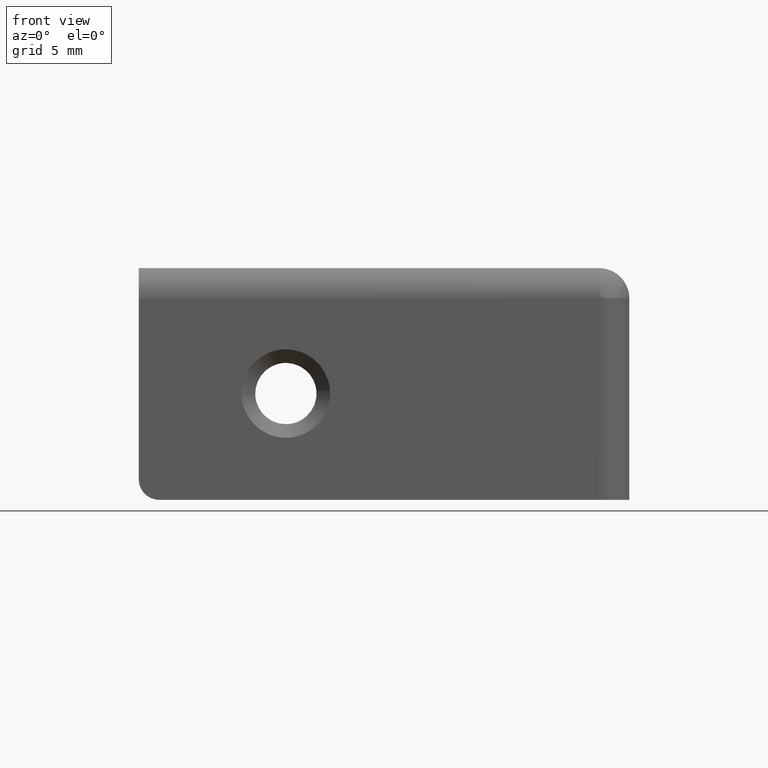
[diagram: clean part render]
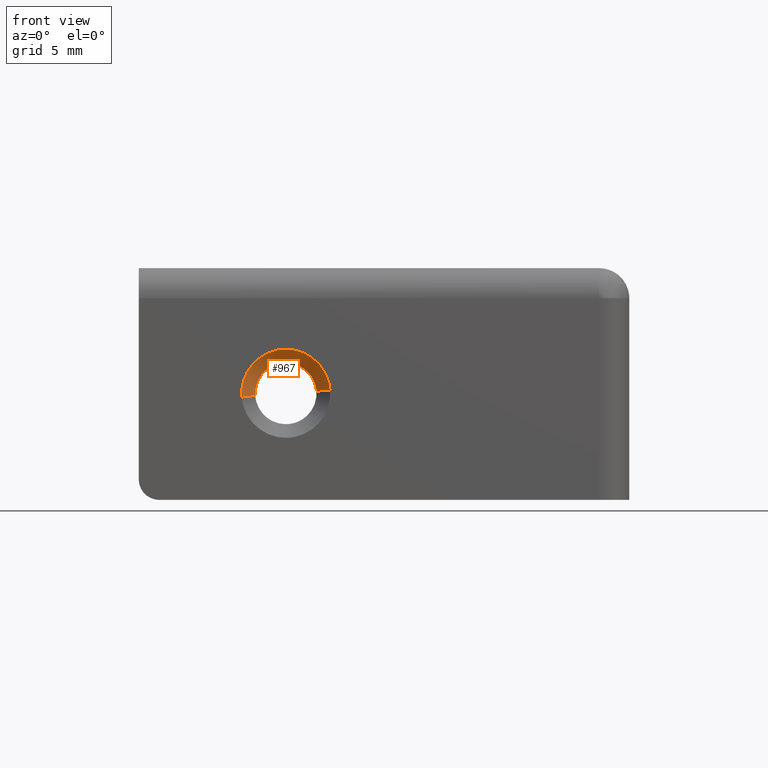
[diagram: same view with one face highlighted and labeled with its STEP entity id]
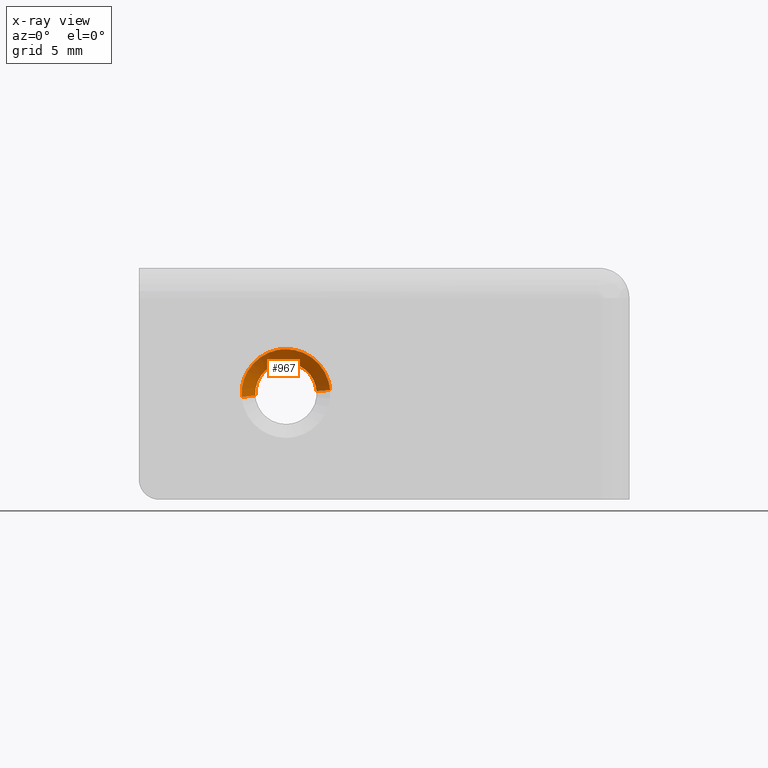
[diagram: x-ray of the same camera — body ghosted, the highlighted face saturated]
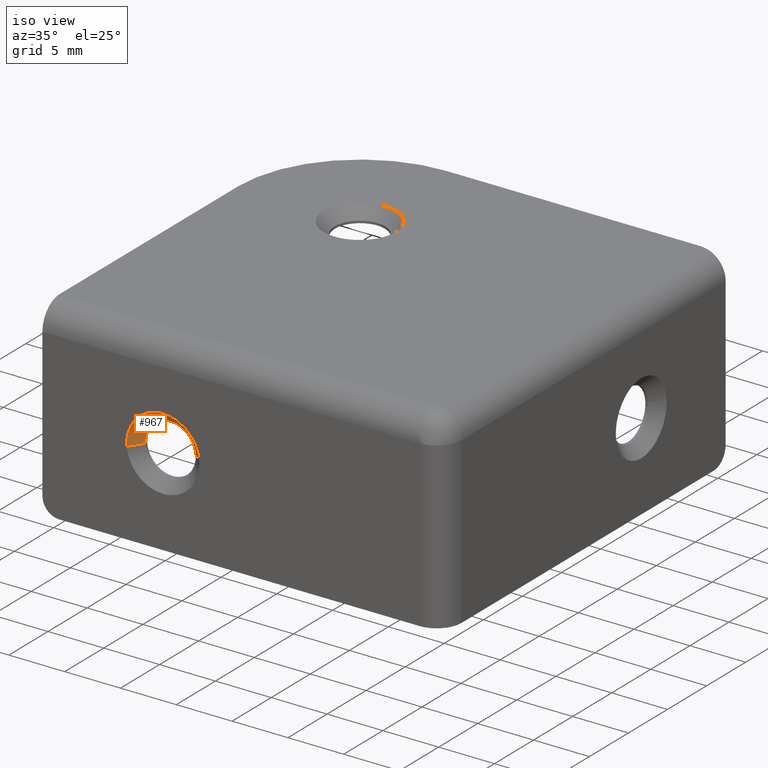
[diagram: same view with one face highlighted and labeled with its STEP entity id]
A machine part, front view. The second image highlights one B-rep face of the part: STEP entity #967.
The next image is the same camera in x-ray: the body ghosted, the highlighted face saturated — about 0% of this face is hidden behind the body in this view.
A second angle (iso view) of the same face is appended — the face is thin or edge-on in the first view.
In plain terms, the highlighted face is a freeform B-spline surface patch.
Its self-contained STEP definition (entity closure, byte-faithful):
#772=CARTESIAN_POINT('',(-27.445803308114620,0.999999999999988,7.662640976774620));
#773=VERTEX_POINT('',#772);
#817=CARTESIAN_POINT('',(-22.956935999099692,0.999999999998029,7.976532965402836));
#818=VERTEX_POINT('',#817);
#834=CARTESIAN_POINT('',(-25.199999999999999,1.0,10.049999999999899));
#835=VERTEX_POINT('',#834);
#836=CARTESIAN_POINT('',(-25.199999999999999,1.0,10.049999999999899));
#837=CARTESIAN_POINT('',(-23.120121393797195,1.0,10.049999999999901));
#838=CARTESIAN_POINT('',(-22.956935999099692,0.999999999998029,7.976532965402837));
#846=(BOUNDED_CURVE()B_SPLINE_CURVE(2,(#836,#837,#838),.UNSPECIFIED.,.F.,.U.)B_SPLINE_CURVE_WITH_KNOTS((3,3),(0.0,0.236331300630454),.UNSPECIFIED.)CURVE()GEOMETRIC_REPRESENTATION_ITEM()RATIONAL_B_SPLINE_CURVE((1.0,0.723120658607906,0.969723356166989))REPRESENTATION_ITEM(''));
#847=EDGE_CURVE('',#835,#818,#846,.T.);
#849=CARTESIAN_POINT('',(-27.445803308114634,1.0,7.662640976774619));
#850=CARTESIAN_POINT('',(-27.450000000000006,1.0,7.731256378209540));
#851=CARTESIAN_POINT('',(-27.449999999999999,1.0,7.799999999999900));
#852=CARTESIAN_POINT('',(-27.449999999999999,1.0,10.049999999999899));
#853=CARTESIAN_POINT('',(-25.199999999999999,1.0,10.049999999999899));
#861=(BOUNDED_CURVE()B_SPLINE_CURVE(2,(#849,#850,#851,#852,#853),.UNSPECIFIED.,.F.,.U.)B_SPLINE_CURVE_WITH_KNOTS((3,2,3),(0.739332976895758,0.750000000000000,1.0),.UNSPECIFIED.)CURVE()GEOMETRIC_REPRESENTATION_ITEM()RATIONAL_B_SPLINE_CURVE((0.976072073079065,0.987502805071365,1.0,0.707106781186547,1.0))REPRESENTATION_ITEM(''));
#862=EDGE_CURVE('',#773,#835,#861,.T.);
#901=CARTESIAN_POINT('',(-22.981858932443789,1.025000000000000,7.974571487994355));
#902=CARTESIAN_POINT('',(-23.156430420438245,1.025000000000000,10.192712555550562));
#903=CARTESIAN_POINT('',(-25.374571487994459,1.025000000000000,10.018141067556110));
#904=CARTESIAN_POINT('',(-27.592712555550666,1.025000000000000,9.843569579561651));
#905=CARTESIAN_POINT('',(-27.418141067556210,1.025000000000000,7.625428512005444));
#906=CARTESIAN_POINT('',(-21.934472658690421,-0.025625000000000,8.057002575443423));
#907=CARTESIAN_POINT('',(-22.191475234133957,-0.025625000000000,11.322529916753000));
#908=CARTESIAN_POINT('',(-25.457002575443529,-0.025625000000000,11.065527341309480));
#909=CARTESIAN_POINT('',(-28.722529916753100,-0.025625000000000,10.808524765865952));
#910=CARTESIAN_POINT('',(-28.465527341309571,-0.025625000000000,7.542997424556376));
#918=(BOUNDED_SURFACE()B_SPLINE_SURFACE(2,1,((#901,#906),(#902,#907),(#903,#908),(#904,#909),(#905,#910)),.UNSPECIFIED.,.F.,.F.,.U.)B_SPLINE_SURFACE_WITH_KNOTS((3,2,3),(2,2),(0.0,5.427233200993475,10.854466401986951),(0.0,1.0),.UNSPECIFIED.)GEOMETRIC_REPRESENTATION_ITEM()RATIONAL_B_SPLINE_SURFACE(((1.0,1.0),(0.707106781186548,0.707106781186548),(1.0,1.0),(0.707106781186548,0.707106781186548),(1.0,1.0)))REPRESENTATION_ITEM('')SURFACE());
#919=ORIENTED_EDGE('',*,*,#847,.T.);
#920=CARTESIAN_POINT('',(-21.960018665364888,-6.207024E-012,8.054992061163386));
#921=VERTEX_POINT('',#920);
#922=CARTESIAN_POINT('',(-22.956935999099692,0.999999999998029,7.976532965402836));
#923=CARTESIAN_POINT('',(-21.960018665364888,-6.207024E-012,8.054992061163386));
#924=QUASI_UNIFORM_CURVE('',1,(#922,#923),.UNSPECIFIED.,.F.,.U.);
#925=EDGE_CURVE('',#818,#921,#924,.T.);
#926=ORIENTED_EDGE('',*,*,#925,.T.);
#927=CARTESIAN_POINT('',(-25.199999999999999,0.0,11.049999999999899));
#928=VERTEX_POINT('',#927);
#929=CARTESIAN_POINT('',(-25.199999999999999,0.0,11.049999999999899));
#930=CARTESIAN_POINT('',(-22.195730902199191,0.0,11.049999999999903));
#931=CARTESIAN_POINT('',(-21.960018665364888,-6.207024E-012,8.054992061163386));
#939=(BOUNDED_CURVE()B_SPLINE_CURVE(2,(#929,#930,#931),.UNSPECIFIED.,.F.,.U.)B_SPLINE_CURVE_WITH_KNOTS((3,3),(0.0,0.236331300627740),.UNSPECIFIED.)CURVE()GEOMETRIC_REPRESENTATION_ITEM()RATIONAL_B_SPLINE_CURVE((1.0,0.723120658611086,0.969723356161325))REPRESENTATION_ITEM(''));
#940=EDGE_CURVE('',#928,#921,#939,.T.);
#941=ORIENTED_EDGE('',*,*,#940,.F.);
#942=CARTESIAN_POINT('',(-28.439981334635110,-6.207142E-012,7.545007938836411));
#943=VERTEX_POINT('',#942);
#944=CARTESIAN_POINT('',(-28.439981334635117,-6.207142E-012,7.545007938836411));
#945=CARTESIAN_POINT('',(-28.449999999999996,0.0,7.672307152177250));
#946=CARTESIAN_POINT('',(-28.449999999999999,0.0,7.799999999999900));
#947=CARTESIAN_POINT('',(-28.450000000000003,0.0,11.049999999999899));
#948=CARTESIAN_POINT('',(-25.199999999999999,0.0,11.049999999999899));
#956=(BOUNDED_CURVE()B_SPLINE_CURVE(2,(#944,#945,#946,#947,#948),.UNSPECIFIED.,.F.,.U.)B_SPLINE_CURVE_WITH_KNOTS((3,2,3),(0.736331300627740,0.750000000000000,1.0),.UNSPECIFIED.)CURVE()GEOMETRIC_REPRESENTATION_ITEM()RATIONAL_B_SPLINE_CURVE((0.969723356161325,0.983986122575462,1.0,0.707106781186547,1.0))REPRESENTATION_ITEM(''));
#957=EDGE_CURVE('',#943,#928,#956,.T.);
#958=ORIENTED_EDGE('',*,*,#957,.F.);
#959=CARTESIAN_POINT('',(-27.445803308114620,0.999999999999988,7.662640976774620));
#960=CARTESIAN_POINT('',(-28.439981334635110,-6.207142E-012,7.545007938836411));
#961=QUASI_UNIFORM_CURVE('',1,(#959,#960),.UNSPECIFIED.,.F.,.U.);
#962=EDGE_CURVE('',#773,#943,#961,.T.);
#963=ORIENTED_EDGE('',*,*,#962,.F.);
#964=ORIENTED_EDGE('',*,*,#862,.T.);
#965=EDGE_LOOP('',(#919,#926,#941,#958,#963,#964));
#966=FACE_OUTER_BOUND('',#965,.T.);
#967=ADVANCED_FACE('',(#966),#918,.F.);